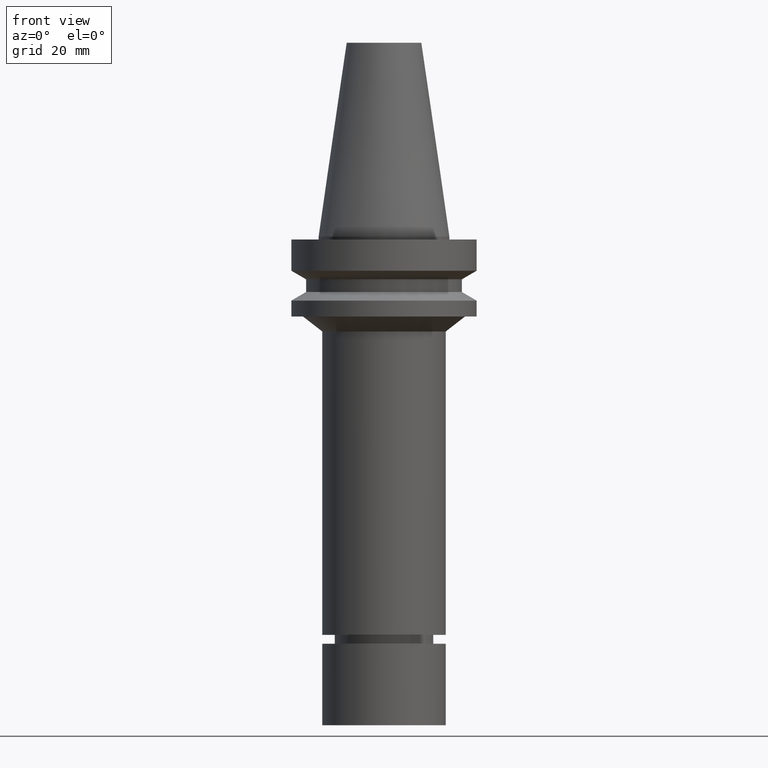
[diagram: clean part render]
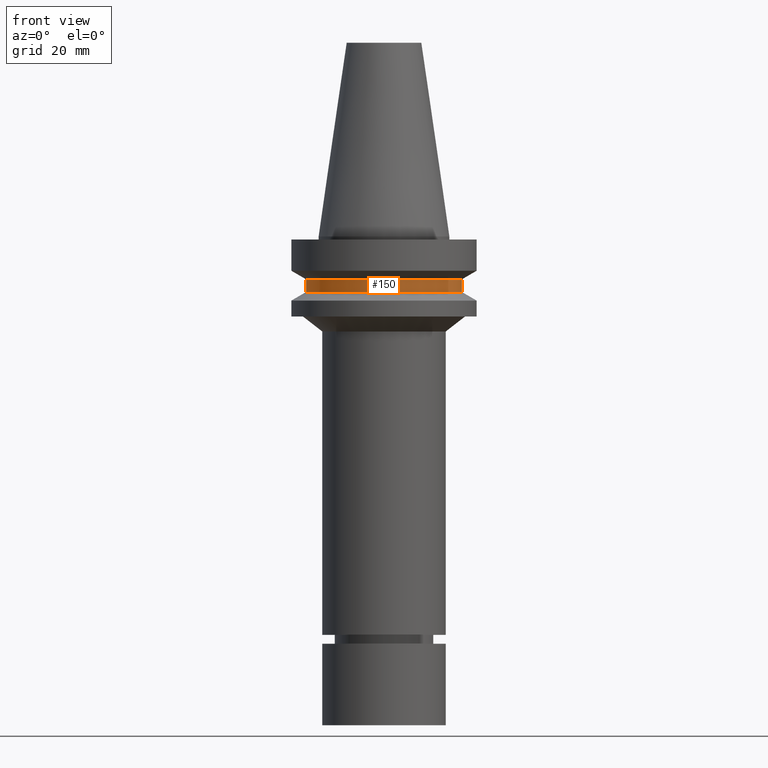
[diagram: same view with one face highlighted and labeled with its STEP entity id]
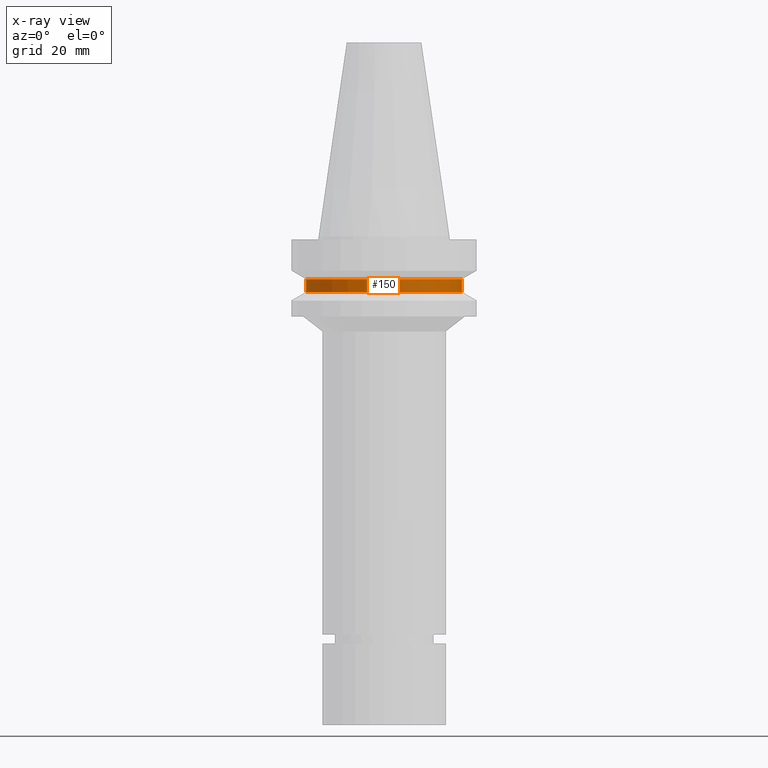
[diagram: x-ray of the same camera — body ghosted, the highlighted face saturated]
A machine part, front view. The second image highlights one B-rep face of the part: STEP entity #150.
The next image is the same camera in x-ray: the body ghosted, the highlighted face saturated — about 0% of this face is hidden behind the body in this view.
In plain terms, the highlighted cylindrical surface (bore or boss wall) has radius 26.5 mm, axis along (0, 0, -1).
Its self-contained STEP definition (entity closure, byte-faithful):
#93=EDGE_CURVE('Unnamed[1]',#230,#230,#231,.T.);
#111=EDGE_CURVE('Unnamed[1]',#256,#256,#257,.T.);
#150=ADVANCED_FACE('Unnamed[1]',(#316,#317),#318,.T.);
#230=VERTEX_POINT('',#413);
#231=CIRCLE('',#414,26.4999999999994);
#256=VERTEX_POINT('',#446);
#257=CIRCLE('',#447,26.5);
#316=FACE_BOUND('',#521,.T.);
#317=FACE_BOUND('',#522,.T.);
#318=CYLINDRICAL_SURFACE('',#523,26.4999999999997);
#413=CARTESIAN_POINT('',(8.8494551369045E-016,26.4999999999995,-14.4522569986152));
#414=AXIS2_PLACEMENT_3D('',#613,#614,#615);
#446=CARTESIAN_POINT('',(1.1479681728942E-015,26.5,-18.7477430013855));
#447=AXIS2_PLACEMENT_3D('',#638,#639,#640);
#521=EDGE_LOOP('',(#706));
#522=EDGE_LOOP('',(#707));
#523=AXIS2_PLACEMENT_3D('',#708,#709,#710);
#613=CARTESIAN_POINT('',(8.84945513690451E-016,7.77971126954228E-014,-14.4522569986152));
#614=DIRECTION('',(6.12323399573677E-017,7.77674569773483E-018,-1.0));
#615=DIRECTION('',(-5.3033410670951E-033,1.0,7.77674569773483E-018));
#638=CARTESIAN_POINT('',(1.1479681728942E-015,7.78305175977142E-014,-18.7477430013855));
#639=DIRECTION('',(6.12323399573677E-017,7.77674569773466E-018,-1.0));
#640=DIRECTION('',(-5.30334106709499E-033,1.0,7.77674569773466E-018));
#706=ORIENTED_EDGE('',*,*,#111,.F.);
#707=ORIENTED_EDGE('',*,*,#93,.T.);
#708=CARTESIAN_POINT('',(1.01645684329232E-015,7.78138151465685E-014,-16.6000000000003));
#709=DIRECTION('',(6.12323399573677E-017,7.77674569773474E-018,-1.0));
#710=DIRECTION('',(-5.30334106709505E-033,1.0,7.77674569773474E-018));